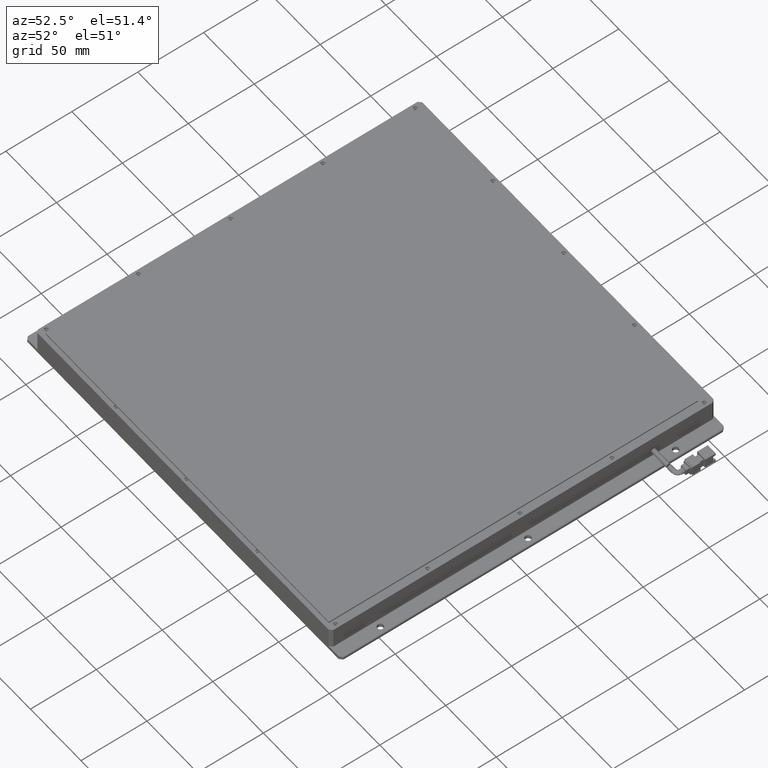
[diagram: clean part render]
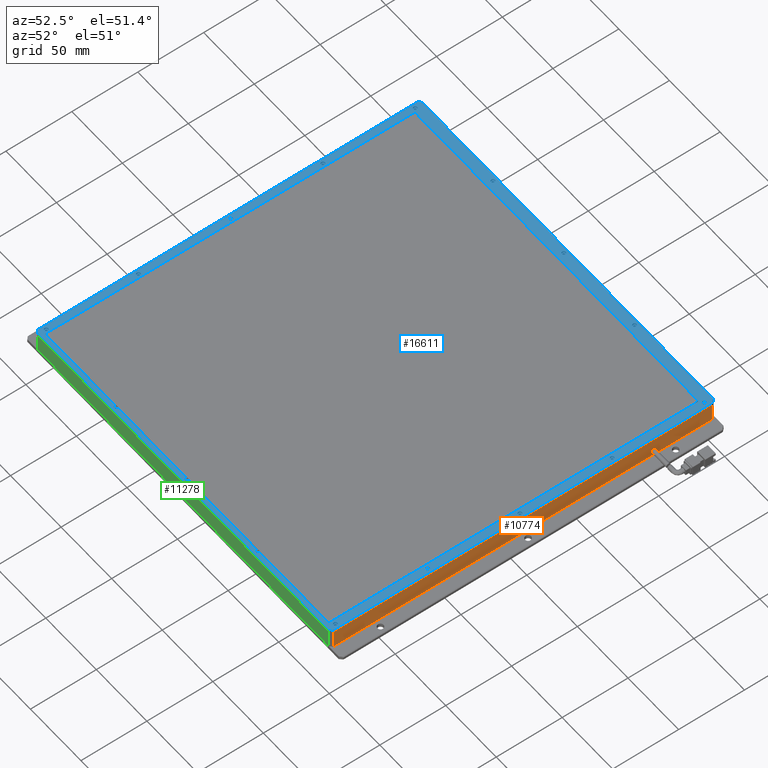
[diagram: same view with three faces highlighted in distinct colors, each labeled with its STEP entity id]
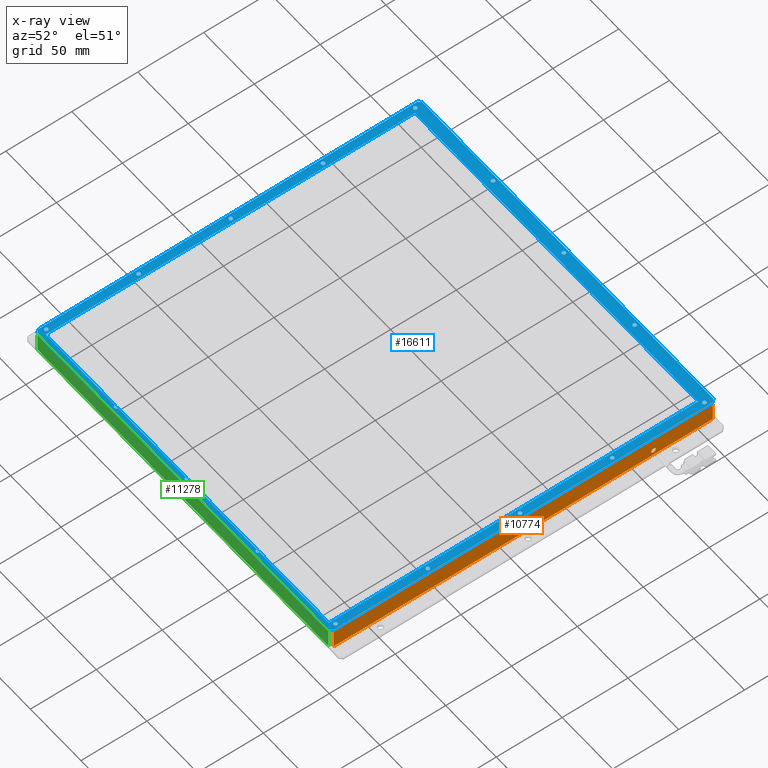
[diagram: x-ray of the same camera — body ghosted, the three highlighted faces saturated]
A machine part, auxiliary view with three faces highlighted in distinct colors.
The next image is the same camera in x-ray (body ghosted, the three faces saturated) — at least one of them is partly hidden behind the body in this view.
Their STEP definitions:

[orange] entity #10774 — the highlighted planar face has unit normal (-1, 0, 0).
#458 = CARTESIAN_POINT ( 'NONE',  ( 178.9193228736581300, 157.2698045692266600, 6.999999999971805700 ) ) ;
#603 = EDGE_CURVE ( 'NONE', #19371, #827, #5428, .T. ) ;
#827 = VERTEX_POINT ( 'NONE', #8607 ) ;
#866 = CARTESIAN_POINT ( 'NONE',  ( 178.9193228736581300, 157.2698045692267200, -7.000000000028197000 ) ) ;
#1228 = CARTESIAN_POINT ( 'NONE',  ( 178.9193228736581300, 157.2698045692266600, 6.999999999971805700 ) ) ;
#1748 = LINE ( 'NONE', #11490, #12167 ) ;
#2103 = EDGE_LOOP ( 'NONE', ( #14586, #13769, #7052, #14023 ) ) ;
#2141 = CARTESIAN_POINT ( 'NONE',  ( 178.9193228736581300, 112.2698045692266400, -3.000000000028194300 ) ) ;
#2209 = FACE_BOUND ( 'NONE', #21360, .T. ) ;
#3963 = DIRECTION ( 'NONE',  ( -0.0000000000000000000, -1.000000000000000000, 0.0000000000000000000 ) ) ;
#4150 = CARTESIAN_POINT ( 'NONE',  ( 178.9193228736581900, -132.7301954307733600, 6.999999999971805700 ) ) ;
#4620 = EDGE_CURVE ( 'NONE', #9278, #5001, #5615, .T. ) ;
#5001 = VERTEX_POINT ( 'NONE', #5951 ) ;
#5155 = CARTESIAN_POINT ( 'NONE',  ( 178.9193228736581300, 112.2698045692266400, -3.000000000028194300 ) ) ;
#5159 = ORIENTED_EDGE ( 'NONE', *, *, #21062, .F. ) ;
#5226 = VERTEX_POINT ( 'NONE', #19748 ) ;
#5260 = ORIENTED_EDGE ( 'NONE', *, *, #603, .F. ) ;
#5428 = CIRCLE ( 'NONE', #10897, 1.750000000000001600 ) ;
#5615 = LINE ( 'NONE', #9437, #8799 ) ;
#5755 = DIRECTION ( 'NONE',  ( -0.0000000000000000000, 1.000000000000000000, 0.0000000000000000000 ) ) ;
#5951 = CARTESIAN_POINT ( 'NONE',  ( 178.9193228736581900, -130.7301954307732200, -7.000000000028196100 ) ) ;
#6091 = CARTESIAN_POINT ( 'NONE',  ( 178.9193228736581300, 159.2698045692266900, 6.999999999971805700 ) ) ;
#6350 = AXIS2_PLACEMENT_3D ( 'NONE', #6091, #19034, #11629 ) ;
#7052 = ORIENTED_EDGE ( 'NONE', *, *, #17153, .T. ) ;
#7127 = AXIS2_PLACEMENT_3D ( 'NONE', #2141, #23889, #13033 ) ;
#7828 = DIRECTION ( 'NONE',  ( -0.0000000000000000000, -0.0000000000000000000, -1.000000000000000000 ) ) ;
#8607 = CARTESIAN_POINT ( 'NONE',  ( 178.9193228736581300, 112.2698045692266400, -1.250000000028193000 ) ) ;
#8799 = VECTOR ( 'NONE', #3963, 1000.000000000000000 ) ;
#9278 = VERTEX_POINT ( 'NONE', #866 ) ;
#9437 = CARTESIAN_POINT ( 'NONE',  ( 178.9193228736581300, 159.2698045692266900, -7.000000000028194300 ) ) ;
#9910 = EDGE_CURVE ( 'NONE', #9278, #21221, #22787, .T. ) ;
#10774 = ADVANCED_FACE ( 'NONE', ( #21245, #2209 ), #17342, .F. ) ;
#10897 = AXIS2_PLACEMENT_3D ( 'NONE', #5155, #16015, #12310 ) ;
#11490 = CARTESIAN_POINT ( 'NONE',  ( 178.9193228736582500, -130.7301954307731900, 6.999999999971805700 ) ) ;
#11629 = DIRECTION ( 'NONE',  ( 0.0000000000000000000, 0.0000000000000000000, 1.000000000000000000 ) ) ;
#11792 = EDGE_CURVE ( 'NONE', #5226, #21221, #23300, .T. ) ;
#12167 = VECTOR ( 'NONE', #7828, 1000.000000000000000 ) ;
#12310 = DIRECTION ( 'NONE',  ( 0.0000000000000000000, 0.0000000000000000000, 1.000000000000000000 ) ) ;
#13033 = DIRECTION ( 'NONE',  ( 0.0000000000000000000, 0.0000000000000000000, 1.000000000000000000 ) ) ;
#13769 = ORIENTED_EDGE ( 'NONE', *, *, #11792, .F. ) ;
#14023 = ORIENTED_EDGE ( 'NONE', *, *, #4620, .F. ) ;
#14459 = VECTOR ( 'NONE', #15913, 1000.000000000000000 ) ;
#14586 = ORIENTED_EDGE ( 'NONE', *, *, #9910, .T. ) ;
#15083 = CIRCLE ( 'NONE', #7127, 1.750000000000001600 ) ;
#15480 = CARTESIAN_POINT ( 'NONE',  ( 178.9193228736581300, 112.2698045692266400, -4.750000000028196100 ) ) ;
#15913 = DIRECTION ( 'NONE',  ( 0.0000000000000000000, 0.0000000000000000000, 1.000000000000000000 ) ) ;
#16015 = DIRECTION ( 'NONE',  ( 1.000000000000000000, 0.0000000000000000000, 0.0000000000000000000 ) ) ;
#17153 = EDGE_CURVE ( 'NONE', #5226, #5001, #1748, .T. ) ;
#17342 = PLANE ( 'NONE',  #6350 ) ;
#19034 = DIRECTION ( 'NONE',  ( -1.000000000000000000, 0.0000000000000000000, 0.0000000000000000000 ) ) ;
#19371 = VERTEX_POINT ( 'NONE', #15480 ) ;
#19748 = CARTESIAN_POINT ( 'NONE',  ( 178.9193228736581900, -130.7301954307732200, 6.999999999971805700 ) ) ;
#21062 = EDGE_CURVE ( 'NONE', #827, #19371, #15083, .T. ) ;
#21221 = VERTEX_POINT ( 'NONE', #458 ) ;
#21245 = FACE_OUTER_BOUND ( 'NONE', #2103, .T. ) ;
#21360 = EDGE_LOOP ( 'NONE', ( #5159, #5260 ) ) ;
#22726 = VECTOR ( 'NONE', #5755, 1000.000000000000000 ) ;
#22787 = LINE ( 'NONE', #1228, #14459 ) ;
#23300 = LINE ( 'NONE', #4150, #22726 ) ;
#23889 = DIRECTION ( 'NONE',  ( 1.000000000000000000, 0.0000000000000000000, 0.0000000000000000000 ) ) ;

[blue] entity #16611 — the highlighted planar face has unit normal (0, 0, 1).
#41 = EDGE_CURVE ( 'NONE', #20316, #2565, #19989, .T. ) ;
#45 = VERTEX_POINT ( 'NONE', #23676 ) ;
#58 = VECTOR ( 'NONE', #8919, 1000.000000000000000 ) ;
#108 = VECTOR ( 'NONE', #19925, 1000.000000000000000 ) ;
#136 = CARTESIAN_POINT ( 'NONE',  ( 32.91932287365807500, -129.7301954307734500, 8.999999999971805700 ) ) ;
#149 = CARTESIAN_POINT ( 'NONE',  ( -38.48067712634186000, 156.2698045692266100, 8.999999999971805700 ) ) ;
#150 = EDGE_CURVE ( 'NONE', #23610, #10617, #19120, .T. ) ;
#168 = CARTESIAN_POINT ( 'NONE',  ( -111.4806771263418600, -56.73019543077345600, 8.999999999971805700 ) ) ;
#188 = CARTESIAN_POINT ( 'NONE',  ( 31.51932287365814700, 156.2698045692266100, 8.999999999971805700 ) ) ;
#193 = DIRECTION ( 'NONE',  ( 0.0000000000000000000, 1.000000000000000000, 0.0000000000000000000 ) ) ;
#218 = DIRECTION ( 'NONE',  ( 1.000000000000000000, 0.0000000000000000000, 0.0000000000000000000 ) ) ;
#240 = DIRECTION ( 'NONE',  ( -0.0000000000000000000, -0.0000000000000000000, -1.000000000000000000 ) ) ;
#330 = AXIS2_PLACEMENT_3D ( 'NONE', #22643, #13337, #2338 ) ;
#333 = EDGE_CURVE ( 'NONE', #1569, #11695, #5176, .T. ) ;
#356 = DIRECTION ( 'NONE',  ( -0.0000000000000000000, -0.0000000000000000000, -1.000000000000000000 ) ) ;
#445 = VERTEX_POINT ( 'NONE', #10423 ) ;
#480 = ORIENTED_EDGE ( 'NONE', *, *, #13216, .T. ) ;
#505 = LINE ( 'NONE', #12474, #22982 ) ;
#577 = CARTESIAN_POINT ( 'NONE',  ( 34.31932287365811600, 156.2698045692266100, 8.999999999971805700 ) ) ;
#691 = EDGE_CURVE ( 'NONE', #1892, #4509, #22768, .T. ) ;
#755 = VERTEX_POINT ( 'NONE', #15887 ) ;
#774 = ORIENTED_EDGE ( 'NONE', *, *, #15206, .T. ) ;
#961 = AXIS2_PLACEMENT_3D ( 'NONE', #2984, #8065, #22823 ) ;
#1058 = PLANE ( 'NONE',  #2198 ) ;
#1064 = VECTOR ( 'NONE', #20783, 1000.000000000000000 ) ;
#1273 = VECTOR ( 'NONE', #3932, 1000.000000000000000 ) ;
#1386 = CARTESIAN_POINT ( 'NONE',  ( -107.0806771263418400, 150.5687873210993100, 8.999999999971805700 ) ) ;
#1404 = VECTOR ( 'NONE', #193, 1000.000000000000000 ) ;
#1569 = VERTEX_POINT ( 'NONE', #2923 ) ;
#1603 = CARTESIAN_POINT ( 'NONE',  ( 177.3193228736581400, -56.73019543077345600, 8.999999999971805700 ) ) ;
#1661 = CIRCLE ( 'NONE', #15028, 1.399999999999984600 ) ;
#1765 = ORIENTED_EDGE ( 'NONE', *, *, #15732, .T. ) ;
#1830 = LINE ( 'NONE', #6997, #108 ) ;
#1892 = VERTEX_POINT ( 'NONE', #11324 ) ;
#1924 = DIRECTION ( 'NONE',  ( -0.0000000000000000000, -0.0000000000000000000, -1.000000000000000000 ) ) ;
#1935 = DIRECTION ( 'NONE',  ( 1.000000000000000000, 0.0000000000000000000, 0.0000000000000000000 ) ) ;
#1988 = DIRECTION ( 'NONE',  ( 1.000000000000000000, 0.0000000000000000000, 0.0000000000000000000 ) ) ;
#2037 = EDGE_LOOP ( 'NONE', ( #23374, #2128 ) ) ;
#2068 = DIRECTION ( 'NONE',  ( 1.000000000000000000, 0.0000000000000000000, 0.0000000000000000000 ) ) ;
#2123 = CARTESIAN_POINT ( 'NONE',  ( 178.9193228736581300, -130.7301954307733600, 8.999999999971805700 ) ) ;
#2125 = CIRCLE ( 'NONE', #10610, 1.399999999999984600 ) ;
#2128 = ORIENTED_EDGE ( 'NONE', *, *, #4251, .T. ) ;
#2172 = EDGE_LOOP ( 'NONE', ( #23539, #13521 ) ) ;
#2174 = CARTESIAN_POINT ( 'NONE',  ( 101.5193228736581100, -129.7301954307734500, 8.999999999971805700 ) ) ;
#2198 = AXIS2_PLACEMENT_3D ( 'NONE', #6588, #20828, #18977 ) ;
#2261 = ORIENTED_EDGE ( 'NONE', *, *, #13351, .T. ) ;
#2267 = VERTEX_POINT ( 'NONE', #17226 ) ;
#2275 = EDGE_CURVE ( 'NONE', #22807, #21319, #16870, .T. ) ;
#2280 = CIRCLE ( 'NONE', #9572, 1.399999999999984600 ) ;
#2316 = DIRECTION ( 'NONE',  ( -0.0000000000000000000, -0.0000000000000000000, -1.000000000000000000 ) ) ;
#2325 = LINE ( 'NONE', #2123, #9520 ) ;
#2338 = DIRECTION ( 'NONE',  ( 1.000000000000000000, 0.0000000000000000000, 0.0000000000000000000 ) ) ;
#2411 = CARTESIAN_POINT ( 'NONE',  ( 175.9193228736581600, 153.2698045692265800, 8.999999999971805700 ) ) ;
#2443 = VERTEX_POINT ( 'NONE', #6984 ) ;
#2480 = EDGE_CURVE ( 'NONE', #5508, #22738, #2125, .T. ) ;
#2521 = CIRCLE ( 'NONE', #6328, 1.399999999999984600 ) ;
#2565 = VERTEX_POINT ( 'NONE', #15082 ) ;
#2615 = FACE_BOUND ( 'NONE', #8113, .T. ) ;
#2667 = DIRECTION ( 'NONE',  ( -0.0000000000000000000, -0.0000000000000000000, -1.000000000000000000 ) ) ;
#2725 = AXIS2_PLACEMENT_3D ( 'NONE', #23677, #10522, #6804 ) ;
#2748 = ORIENTED_EDGE ( 'NONE', *, *, #6026, .T. ) ;
#2776 = AXIS2_PLACEMENT_3D ( 'NONE', #7051, #7134, #16267 ) ;
#2812 = DIRECTION ( 'NONE',  ( 1.000000000000000000, 0.0000000000000000000, 0.0000000000000000000 ) ) ;
#2849 = AXIS2_PLACEMENT_3D ( 'NONE', #6208, #2667, #13729 ) ;
#2876 = ORIENTED_EDGE ( 'NONE', *, *, #13966, .F. ) ;
#2882 = FACE_BOUND ( 'NONE', #7272, .T. ) ;
#2923 = CARTESIAN_POINT ( 'NONE',  ( -108.6806771263418900, 13.26980456922655100, 8.999999999971805700 ) ) ;
#2984 = CARTESIAN_POINT ( 'NONE',  ( 175.9193228736581600, 13.26980456922655100, 8.999999999971805700 ) ) ;
#3008 = EDGE_LOOP ( 'NONE', ( #19643, #18709, #18446, #7301, #4678, #20437, #22089, #12906 ) ) ;
#3013 = CIRCLE ( 'NONE', #7028, 1.399999999999984600 ) ;
#3078 = CARTESIAN_POINT ( 'NONE',  ( 177.3193228736581400, 83.26980456922656500, 8.999999999971805700 ) ) ;
#3149 = CARTESIAN_POINT ( 'NONE',  ( -108.6806771263418900, -56.73019543077345600, 8.999999999971805700 ) ) ;
#3181 = DIRECTION ( 'NONE',  ( -0.0000000000000000000, -0.0000000000000000000, -1.000000000000000000 ) ) ;
#3391 = ORIENTED_EDGE ( 'NONE', *, *, #13288, .T. ) ;
#3454 = CARTESIAN_POINT ( 'NONE',  ( 177.3193228736581100, -126.7301954307734600, 8.999999999971805700 ) ) ;
#3468 = FACE_BOUND ( 'NONE', #23778, .T. ) ;
#3522 = CIRCLE ( 'NONE', #21890, 1.399999999999984600 ) ;
#3528 = CARTESIAN_POINT ( 'NONE',  ( -107.0806771263418400, -129.4312126789007200, 8.999999999971805700 ) ) ;
#3542 = DIRECTION ( 'NONE',  ( -0.7071067811865474600, 0.7071067811865474600, -0.0000000000000000000 ) ) ;
#3640 = VERTEX_POINT ( 'NONE', #9193 ) ;
#3773 = EDGE_CURVE ( 'NONE', #17961, #10265, #9793, .T. ) ;
#3816 = VERTEX_POINT ( 'NONE', #577 ) ;
#3932 = DIRECTION ( 'NONE',  ( -0.0000000000000000000, -1.000000000000000000, -0.0000000000000000000 ) ) ;
#4092 = ORIENTED_EDGE ( 'NONE', *, *, #2480, .T. ) ;
#4123 = CIRCLE ( 'NONE', #7741, 1.399999999999984600 ) ;
#4191 = EDGE_CURVE ( 'NONE', #5548, #21917, #2521, .T. ) ;
#4241 = ORIENTED_EDGE ( 'NONE', *, *, #23366, .T. ) ;
#4251 = EDGE_CURVE ( 'NONE', #3640, #8877, #1661, .T. ) ;
#4315 = ORIENTED_EDGE ( 'NONE', *, *, #5514, .T. ) ;
#4357 = EDGE_CURVE ( 'NONE', #23759, #15932, #22110, .T. ) ;
#4367 = VECTOR ( 'NONE', #14035, 1000.000000000000100 ) ;
#4404 = CARTESIAN_POINT ( 'NONE',  ( 177.3193228736581400, 153.2698045692265800, 8.999999999971805700 ) ) ;
#4509 = VERTEX_POINT ( 'NONE', #5055 ) ;
#4676 = EDGE_LOOP ( 'NONE', ( #2748, #5101 ) ) ;
#4678 = ORIENTED_EDGE ( 'NONE', *, *, #7163, .T. ) ;
#4696 = CARTESIAN_POINT ( 'NONE',  ( -113.0806771263418400, 159.2698045692265800, 8.999999999971805700 ) ) ;
#4712 = DIRECTION ( 'NONE',  ( -0.0000000000000000000, -0.0000000000000000000, -1.000000000000000000 ) ) ;
#4747 = VERTEX_POINT ( 'NONE', #19073 ) ;
#4754 = CIRCLE ( 'NONE', #15399, 1.399999999999984600 ) ;
#4770 = DIRECTION ( 'NONE',  ( -0.0000000000000000000, -1.000000000000000000, -0.0000000000000000000 ) ) ;
#4849 = DIRECTION ( 'NONE',  ( -0.0000000000000000000, -0.0000000000000000000, -1.000000000000000000 ) ) ;
#4911 = DIRECTION ( 'NONE',  ( 1.000000000000000000, -0.0000000000000000000, -0.0000000000000000000 ) ) ;
#4933 = EDGE_CURVE ( 'NONE', #8877, #3640, #16869, .T. ) ;
#4934 = CARTESIAN_POINT ( 'NONE',  ( 176.9193228736581000, 159.2698045692266100, 8.999999999971805700 ) ) ;
#5055 = CARTESIAN_POINT ( 'NONE',  ( 101.5193228736581500, 156.2698045692266100, 8.999999999971805700 ) ) ;
#5101 = ORIENTED_EDGE ( 'NONE', *, *, #21522, .T. ) ;
#5164 = FACE_BOUND ( 'NONE', #17147, .T. ) ;
#5176 = CIRCLE ( 'NONE', #6677, 1.399999999999984600 ) ;
#5192 = EDGE_CURVE ( 'NONE', #2565, #45, #15951, .T. ) ;
#5194 = DIRECTION ( 'NONE',  ( -0.0000000000000000000, -0.0000000000000000000, -1.000000000000000000 ) ) ;
#5242 = CARTESIAN_POINT ( 'NONE',  ( 178.9193228736581000, -130.7301954307734200, 8.999999999971805700 ) ) ;
#5248 = ORIENTED_EDGE ( 'NONE', *, *, #9837, .T. ) ;
#5421 = AXIS2_PLACEMENT_3D ( 'NONE', #2411, #13564, #19189 ) ;
#5475 = CARTESIAN_POINT ( 'NONE',  ( 172.9193228736581900, -129.4312126789007200, 8.999999999971805700 ) ) ;
#5508 = VERTEX_POINT ( 'NONE', #149 ) ;
#5514 = EDGE_CURVE ( 'NONE', #22738, #5508, #10417, .T. ) ;
#5528 = ORIENTED_EDGE ( 'NONE', *, *, #12122, .T. ) ;
#5548 = VERTEX_POINT ( 'NONE', #7476 ) ;
#5589 = EDGE_CURVE ( 'NONE', #11189, #9116, #15391, .T. ) ;
#5596 = DIRECTION ( 'NONE',  ( 1.000000000000000000, 0.0000000000000000000, 0.0000000000000000000 ) ) ;
#5604 = CARTESIAN_POINT ( 'NONE',  ( -38.44837932860767900, -129.4312126789007200, 8.999999999971805700 ) ) ;
#5750 = CARTESIAN_POINT ( 'NONE',  ( -110.0806771263418700, 13.26980456922655100, 8.999999999971805700 ) ) ;
#5756 = EDGE_CURVE ( 'NONE', #4509, #1892, #7573, .T. ) ;
#5760 = CIRCLE ( 'NONE', #961, 1.399999999999984600 ) ;
#5806 = AXIS2_PLACEMENT_3D ( 'NONE', #22128, #22049, #2068 ) ;
#5808 = DIRECTION ( 'NONE',  ( -0.0000000000000000000, -0.0000000000000000000, -1.000000000000000000 ) ) ;
#6026 = EDGE_CURVE ( 'NONE', #755, #7775, #8655, .T. ) ;
#6163 = CIRCLE ( 'NONE', #5421, 1.399999999999984600 ) ;
#6172 = CARTESIAN_POINT ( 'NONE',  ( 32.91932287365813200, 156.2698045692266100, 8.999999999971805700 ) ) ;
#6208 = CARTESIAN_POINT ( 'NONE',  ( 175.9193228736581300, -56.73019543077345600, 8.999999999971805700 ) ) ;
#6253 = VERTEX_POINT ( 'NONE', #13860 ) ;
#6287 = LINE ( 'NONE', #5475, #1404 ) ;
#6325 = CARTESIAN_POINT ( 'NONE',  ( -38.48067712634191700, -129.7301954307734500, 8.999999999971805700 ) ) ;
#6328 = AXIS2_PLACEMENT_3D ( 'NONE', #136, #20388, #9551 ) ;
#6344 = FACE_BOUND ( 'NONE', #10014, .T. ) ;
#6356 = ORIENTED_EDGE ( 'NONE', *, *, #11414, .T. ) ;
#6365 = EDGE_LOOP ( 'NONE', ( #4241, #19492 ) ) ;
#6369 = AXIS2_PLACEMENT_3D ( 'NONE', #10461, #10217, #2812 ) ;
#6445 = EDGE_CURVE ( 'NONE', #19022, #2267, #505, .T. ) ;
#6588 = CARTESIAN_POINT ( 'NONE',  ( -113.0806771263418400, -132.7301954307733900, 8.999999999971805700 ) ) ;
#6608 = FACE_BOUND ( 'NONE', #2037, .T. ) ;
#6677 = AXIS2_PLACEMENT_3D ( 'NONE', #5750, #2316, #1988 ) ;
#6804 = DIRECTION ( 'NONE',  ( 1.000000000000000000, 0.0000000000000000000, 0.0000000000000000000 ) ) ;
#6912 = FACE_BOUND ( 'NONE', #7935, .T. ) ;
#6958 = VERTEX_POINT ( 'NONE', #19939 ) ;
#6966 = CARTESIAN_POINT ( 'NONE',  ( -111.4806771263418600, 13.26980456922655100, 8.999999999971805700 ) ) ;
#6984 = CARTESIAN_POINT ( 'NONE',  ( 177.3193228736581400, 13.26980456922655100, 8.999999999971805700 ) ) ;
#6997 = CARTESIAN_POINT ( 'NONE',  ( -107.0806771263418400, -129.4312126789007200, 8.999999999971805700 ) ) ;
#7028 = AXIS2_PLACEMENT_3D ( 'NONE', #15596, #17460, #19302 ) ;
#7051 = CARTESIAN_POINT ( 'NONE',  ( -110.0806771263418700, 13.26980456922655100, 8.999999999971805700 ) ) ;
#7134 = DIRECTION ( 'NONE',  ( -0.0000000000000000000, -0.0000000000000000000, -1.000000000000000000 ) ) ;
#7162 = ORIENTED_EDGE ( 'NONE', *, *, #11549, .F. ) ;
#7163 = EDGE_CURVE ( 'NONE', #45, #13742, #15695, .T. ) ;
#7254 = EDGE_CURVE ( 'NONE', #6253, #22712, #16847, .T. ) ;
#7272 = EDGE_LOOP ( 'NONE', ( #6356, #21199 ) ) ;
#7301 = ORIENTED_EDGE ( 'NONE', *, *, #5192, .T. ) ;
#7364 = AXIS2_PLACEMENT_3D ( 'NONE', #7776, #19084, #20694 ) ;
#7414 = CARTESIAN_POINT ( 'NONE',  ( 176.9193228736581600, 159.2698045692265800, 8.999999999971805700 ) ) ;
#7430 = CARTESIAN_POINT ( 'NONE',  ( -37.08067712634193200, -129.7301954307734500, 8.999999999971805700 ) ) ;
#7443 = CIRCLE ( 'NONE', #18959, 1.399999999999984600 ) ;
#7476 = CARTESIAN_POINT ( 'NONE',  ( 34.28702507592382900, -129.4312126789007200, 8.999999999971805700 ) ) ;
#7573 = CIRCLE ( 'NONE', #16329, 1.399999999999984600 ) ;
#7678 = AXIS2_PLACEMENT_3D ( 'NONE', #14365, #16197, #21756 ) ;
#7699 = VERTEX_POINT ( 'NONE', #18306 ) ;
#7741 = AXIS2_PLACEMENT_3D ( 'NONE', #14277, #3181, #10350 ) ;
#7775 = VERTEX_POINT ( 'NONE', #20483 ) ;
#7776 = CARTESIAN_POINT ( 'NONE',  ( -110.0806771263418700, -56.73019543077345600, 8.999999999971805700 ) ) ;
#7935 = EDGE_LOOP ( 'NONE', ( #17231, #20626, #5248, #21608, #23143, #7162, #19760, #2876, #16534, #480, #13975, #2261, #21171, #15911, #5528, #774 ) ) ;
#8019 = AXIS2_PLACEMENT_3D ( 'NONE', #19923, #21775, #21920 ) ;
#8065 = DIRECTION ( 'NONE',  ( -0.0000000000000000000, -0.0000000000000000000, -1.000000000000000000 ) ) ;
#8076 = DIRECTION ( 'NONE',  ( 1.000000000000000000, 0.0000000000000000000, 0.0000000000000000000 ) ) ;
#8113 = EDGE_LOOP ( 'NONE', ( #4315, #4092 ) ) ;
#8116 = DIRECTION ( 'NONE',  ( -0.0000000000000000000, -0.0000000000000000000, -1.000000000000000000 ) ) ;
#8249 = AXIS2_PLACEMENT_3D ( 'NONE', #6172, #19112, #20949 ) ;
#8254 = AXIS2_PLACEMENT_3D ( 'NONE', #10063, #15507, #8076 ) ;
#8376 = ORIENTED_EDGE ( 'NONE', *, *, #22280, .T. ) ;
#8378 = CIRCLE ( 'NONE', #23369, 1.399999999999984600 ) ;
#8412 = CARTESIAN_POINT ( 'NONE',  ( -107.0806771263418400, -129.4312126789007200, 8.999999999971805700 ) ) ;
#8655 = CIRCLE ( 'NONE', #5806, 1.399999999999984600 ) ;
#8684 = CARTESIAN_POINT ( 'NONE',  ( 34.31932287365805900, -129.7301954307734500, 8.999999999971805700 ) ) ;
#8700 = CARTESIAN_POINT ( 'NONE',  ( -35.68067712634189100, 156.2698045692266100, 8.999999999971805700 ) ) ;
#8836 = ORIENTED_EDGE ( 'NONE', *, *, #691, .T. ) ;
#8877 = VERTEX_POINT ( 'NONE', #3454 ) ;
#8889 = AXIS2_PLACEMENT_3D ( 'NONE', #21262, #8116, #15406 ) ;
#8893 = ORIENTED_EDGE ( 'NONE', *, *, #10282, .T. ) ;
#8919 = DIRECTION ( 'NONE',  ( 1.000000000000000000, 0.0000000000000000000, 0.0000000000000000000 ) ) ;
#8976 = DIRECTION ( 'NONE',  ( 1.000000000000000000, 0.0000000000000000000, 0.0000000000000000000 ) ) ;
#8998 = AXIS2_PLACEMENT_3D ( 'NONE', #11408, #356, #15117 ) ;
#9028 = ORIENTED_EDGE ( 'NONE', *, *, #17040, .T. ) ;
#9116 = VERTEX_POINT ( 'NONE', #2174 ) ;
#9193 = CARTESIAN_POINT ( 'NONE',  ( 174.5193228736581500, -126.7301954307734600, 8.999999999971805700 ) ) ;
#9195 = VECTOR ( 'NONE', #23000, 1000.000000000000000 ) ;
#9199 = DIRECTION ( 'NONE',  ( 1.000000000000000000, 0.0000000000000000000, 0.0000000000000000000 ) ) ;
#9438 = ORIENTED_EDGE ( 'NONE', *, *, #17756, .T. ) ;
#9464 = CARTESIAN_POINT ( 'NONE',  ( 175.9193228736581300, -126.7301954307734600, 8.999999999971805700 ) ) ;
#9520 = VECTOR ( 'NONE', #14871, 1000.000000000000000 ) ;
#9551 = DIRECTION ( 'NONE',  ( 1.000000000000000000, 0.0000000000000000000, 0.0000000000000000000 ) ) ;
#9572 = AXIS2_PLACEMENT_3D ( 'NONE', #13807, #4712, #11959 ) ;
#9650 = DIRECTION ( 'NONE',  ( 1.000000000000000000, 0.0000000000000000000, 0.0000000000000000000 ) ) ;
#9709 = DIRECTION ( 'NONE',  ( 1.000000000000000000, 0.0000000000000000000, 0.0000000000000000000 ) ) ;
#9717 = CARTESIAN_POINT ( 'NONE',  ( -111.4806771263418600, -126.7301954307734600, 8.999999999971805700 ) ) ;
#9771 = VECTOR ( 'NONE', #12830, 1000.000000000000000 ) ;
#9793 = CIRCLE ( 'NONE', #330, 1.399999999999984600 ) ;
#9837 = EDGE_CURVE ( 'NONE', #22712, #15491, #19640, .T. ) ;
#9929 = CARTESIAN_POINT ( 'NONE',  ( 178.9193228736581000, 157.2698045692266400, 8.999999999971805700 ) ) ;
#9955 = VERTEX_POINT ( 'NONE', #12858 ) ;
#10014 = EDGE_LOOP ( 'NONE', ( #14996, #1765 ) ) ;
#10063 = CARTESIAN_POINT ( 'NONE',  ( 175.9193228736581300, -56.73019543077345600, 8.999999999971805700 ) ) ;
#10066 = DIRECTION ( 'NONE',  ( -0.0000000000000000000, -0.0000000000000000000, -1.000000000000000000 ) ) ;
#10083 = FACE_BOUND ( 'NONE', #4676, .T. ) ;
#10121 = CIRCLE ( 'NONE', #7678, 1.399999999999984600 ) ;
#10217 = DIRECTION ( 'NONE',  ( -0.0000000000000000000, -0.0000000000000000000, -1.000000000000000000 ) ) ;
#10265 = VERTEX_POINT ( 'NONE', #4404 ) ;
#10282 = EDGE_CURVE ( 'NONE', #10994, #10768, #2280, .T. ) ;
#10283 = CIRCLE ( 'NONE', #15908, 1.399999999999984600 ) ;
#10350 = DIRECTION ( 'NONE',  ( 1.000000000000000000, 0.0000000000000000000, 0.0000000000000000000 ) ) ;
#10417 = CIRCLE ( 'NONE', #16145, 1.399999999999984600 ) ;
#10423 = CARTESIAN_POINT ( 'NONE',  ( -108.6806771263418900, 153.2698045692265800, 8.999999999971805700 ) ) ;
#10444 = CARTESIAN_POINT ( 'NONE',  ( -107.0806771263418400, -129.4312126789007200, 8.999999999971805700 ) ) ;
#10461 = CARTESIAN_POINT ( 'NONE',  ( -110.0806771263418700, 153.2698045692265800, 8.999999999971805700 ) ) ;
#10522 = DIRECTION ( 'NONE',  ( -0.0000000000000000000, -0.0000000000000000000, -1.000000000000000000 ) ) ;
#10601 = VERTEX_POINT ( 'NONE', #1603 ) ;
#10610 = AXIS2_PLACEMENT_3D ( 'NONE', #21769, #5194, #21916 ) ;
#10617 = VERTEX_POINT ( 'NONE', #5604 ) ;
#10768 = VERTEX_POINT ( 'NONE', #9717 ) ;
#10887 = VECTOR ( 'NONE', #9709, 1000.000000000000000 ) ;
#10955 = FACE_BOUND ( 'NONE', #22091, .T. ) ;
#10994 = VERTEX_POINT ( 'NONE', #15630 ) ;
#11189 = VERTEX_POINT ( 'NONE', #16751 ) ;
#11226 = CARTESIAN_POINT ( 'NONE',  ( 31.51932287365809400, -129.7301954307734500, 8.999999999971805700 ) ) ;
#11285 = FACE_BOUND ( 'NONE', #6365, .T. ) ;
#11301 = CARTESIAN_POINT ( 'NONE',  ( -107.0806771263418400, 150.5687873210993100, 8.999999999971805700 ) ) ;
#11324 = CARTESIAN_POINT ( 'NONE',  ( 104.3193228736581200, 156.2698045692266100, 8.999999999971805700 ) ) ;
#11360 = DIRECTION ( 'NONE',  ( 1.000000000000000000, 0.0000000000000000000, 0.0000000000000000000 ) ) ;
#11408 = CARTESIAN_POINT ( 'NONE',  ( 175.9193228736581600, 83.26980456922656500, 8.999999999971805700 ) ) ;
#11414 = EDGE_CURVE ( 'NONE', #10265, #17961, #6163, .T. ) ;
#11481 = VERTEX_POINT ( 'NONE', #12011 ) ;
#11494 = LINE ( 'NONE', #1386, #20987 ) ;
#11501 = EDGE_LOOP ( 'NONE', ( #21108, #17728 ) ) ;
#11549 = EDGE_CURVE ( 'NONE', #22925, #23610, #21628, .T. ) ;
#11590 = AXIS2_PLACEMENT_3D ( 'NONE', #13739, #21076, #19453 ) ;
#11646 = CARTESIAN_POINT ( 'NONE',  ( -111.0806771263418700, -132.7301954307733900, 8.999999999971805700 ) ) ;
#11695 = VERTEX_POINT ( 'NONE', #6966 ) ;
#11705 = CARTESIAN_POINT ( 'NONE',  ( 104.2870250759238400, -129.4312126789007200, 8.999999999971805700 ) ) ;
#11728 = CIRCLE ( 'NONE', #8019, 1.399999999999984600 ) ;
#11830 = EDGE_CURVE ( 'NONE', #5548, #14947, #15818, .T. ) ;
#11959 = DIRECTION ( 'NONE',  ( 1.000000000000000000, 0.0000000000000000000, 0.0000000000000000000 ) ) ;
#12011 = CARTESIAN_POINT ( 'NONE',  ( 174.5193228736581300, -56.73019543077345600, 8.999999999971805700 ) ) ;
#12122 = EDGE_CURVE ( 'NONE', #21917, #18877, #4754, .T. ) ;
#12474 = CARTESIAN_POINT ( 'NONE',  ( -113.0806771263418400, -132.7301954307733900, 8.999999999971805700 ) ) ;
#12563 = ORIENTED_EDGE ( 'NONE', *, *, #12567, .T. ) ;
#12567 = EDGE_CURVE ( 'NONE', #10768, #10994, #3013, .T. ) ;
#12830 = DIRECTION ( 'NONE',  ( 1.000000000000000000, 0.0000000000000000000, 0.0000000000000000000 ) ) ;
#12858 = CARTESIAN_POINT ( 'NONE',  ( -111.4806771263418600, 153.2698045692265800, 8.999999999971805700 ) ) ;
#12860 = DIRECTION ( 'NONE',  ( -0.0000000000000000000, -0.0000000000000000000, -1.000000000000000000 ) ) ;
#12906 = ORIENTED_EDGE ( 'NONE', *, *, #16584, .T. ) ;
#12977 = LINE ( 'NONE', #15841, #9195 ) ;
#13055 = CARTESIAN_POINT ( 'NONE',  ( -110.0806771263418700, 153.2698045692265800, 8.999999999971805700 ) ) ;
#13100 = CARTESIAN_POINT ( 'NONE',  ( -110.0806771263418700, 83.26980456922656500, 8.999999999971805700 ) ) ;
#13216 = EDGE_CURVE ( 'NONE', #23006, #11189, #14527, .T. ) ;
#13288 = EDGE_CURVE ( 'NONE', #21319, #22807, #19971, .T. ) ;
#13337 = DIRECTION ( 'NONE',  ( -0.0000000000000000000, -0.0000000000000000000, -1.000000000000000000 ) ) ;
#13351 = EDGE_CURVE ( 'NONE', #9116, #14947, #10121, .T. ) ;
#13475 = VERTEX_POINT ( 'NONE', #14605 ) ;
#13521 = ORIENTED_EDGE ( 'NONE', *, *, #22430, .T. ) ;
#13564 = DIRECTION ( 'NONE',  ( -0.0000000000000000000, -0.0000000000000000000, -1.000000000000000000 ) ) ;
#13729 = DIRECTION ( 'NONE',  ( 1.000000000000000000, 0.0000000000000000000, 0.0000000000000000000 ) ) ;
#13739 = CARTESIAN_POINT ( 'NONE',  ( -37.08067712634193200, -129.7301954307734500, 8.999999999971805700 ) ) ;
#13742 = VERTEX_POINT ( 'NONE', #17795 ) ;
#13807 = CARTESIAN_POINT ( 'NONE',  ( -110.0806771263418700, -126.7301954307734600, 8.999999999971805700 ) ) ;
#13828 = ORIENTED_EDGE ( 'NONE', *, *, #2275, .T. ) ;
#13860 = CARTESIAN_POINT ( 'NONE',  ( -35.71297492407617800, -129.4312126789007200, 8.999999999971805700 ) ) ;
#13940 = DIRECTION ( 'NONE',  ( -0.0000000000000000000, -0.0000000000000000000, -1.000000000000000000 ) ) ;
#13966 = EDGE_CURVE ( 'NONE', #6958, #4747, #6287, .T. ) ;
#13975 = ORIENTED_EDGE ( 'NONE', *, *, #5589, .T. ) ;
#14035 = DIRECTION ( 'NONE',  ( -0.7071067811865474600, -0.7071067811865474600, -0.0000000000000000000 ) ) ;
#14123 = CARTESIAN_POINT ( 'NONE',  ( -113.0806771263418400, 157.2698045692265800, 8.999999999971805700 ) ) ;
#14277 = CARTESIAN_POINT ( 'NONE',  ( 175.9193228736581600, 13.26980456922655100, 8.999999999971805700 ) ) ;
#14365 = CARTESIAN_POINT ( 'NONE',  ( 102.9193228736581000, -129.7301954307734500, 8.999999999971805700 ) ) ;
#14443 = EDGE_CURVE ( 'NONE', #13742, #19022, #12977, .T. ) ;
#14448 = CIRCLE ( 'NONE', #6369, 1.399999999999984600 ) ;
#14527 = CIRCLE ( 'NONE', #22041, 1.399999999999984600 ) ;
#14605 = CARTESIAN_POINT ( 'NONE',  ( 31.55162067139232500, -129.4312126789007200, 8.999999999971805700 ) ) ;
#14655 = VERTEX_POINT ( 'NONE', #3078 ) ;
#14722 = LINE ( 'NONE', #3528, #9771 ) ;
#14728 = CIRCLE ( 'NONE', #17116, 1.399999999999984600 ) ;
#14740 = EDGE_LOOP ( 'NONE', ( #8836, #19248 ) ) ;
#14757 = EDGE_CURVE ( 'NONE', #15491, #10617, #10283, .T. ) ;
#14870 = CARTESIAN_POINT ( 'NONE',  ( 102.9193228736581500, 156.2698045692266100, 8.999999999971805700 ) ) ;
#14871 = DIRECTION ( 'NONE',  ( 0.7071067811865425800, 0.7071067811865525700, -0.0000000000000000000 ) ) ;
#14912 = CARTESIAN_POINT ( 'NONE',  ( -37.08067712634187500, 156.2698045692266100, 8.999999999971805700 ) ) ;
#14939 = CARTESIAN_POINT ( 'NONE',  ( -113.0806771263418400, 159.2698045692265800, 8.999999999971805700 ) ) ;
#14947 = VERTEX_POINT ( 'NONE', #18981 ) ;
#14996 = ORIENTED_EDGE ( 'NONE', *, *, #333, .T. ) ;
#15000 = CARTESIAN_POINT ( 'NONE',  ( -107.0806771263418400, -129.4312126789007200, 8.999999999971805700 ) ) ;
#15028 = AXIS2_PLACEMENT_3D ( 'NONE', #9464, #22374, #11360 ) ;
#15082 = CARTESIAN_POINT ( 'NONE',  ( -111.0806771263417500, 159.2698045692265800, 8.999999999971805700 ) ) ;
#15117 = DIRECTION ( 'NONE',  ( 1.000000000000000000, 0.0000000000000000000, 0.0000000000000000000 ) ) ;
#15124 = DIRECTION ( 'NONE',  ( 1.000000000000000000, 0.0000000000000000000, 0.0000000000000000000 ) ) ;
#15206 = EDGE_CURVE ( 'NONE', #18877, #13475, #11728, .T. ) ;
#15391 = CIRCLE ( 'NONE', #8889, 1.399999999999984600 ) ;
#15399 = AXIS2_PLACEMENT_3D ( 'NONE', #20042, #21954, #8976 ) ;
#15406 = DIRECTION ( 'NONE',  ( 1.000000000000000000, 0.0000000000000000000, 0.0000000000000000000 ) ) ;
#15408 = CIRCLE ( 'NONE', #2776, 1.399999999999984600 ) ;
#15491 = VERTEX_POINT ( 'NONE', #6325 ) ;
#15507 = DIRECTION ( 'NONE',  ( -0.0000000000000000000, -0.0000000000000000000, -1.000000000000000000 ) ) ;
#15595 = CARTESIAN_POINT ( 'NONE',  ( 175.9193228736581300, -126.7301954307734600, 8.999999999971805700 ) ) ;
#15596 = CARTESIAN_POINT ( 'NONE',  ( -110.0806771263418700, -126.7301954307734600, 8.999999999971805700 ) ) ;
#15621 = EDGE_LOOP ( 'NONE', ( #9028, #16454 ) ) ;
#15630 = CARTESIAN_POINT ( 'NONE',  ( -108.6806771263418900, -126.7301954307734600, 8.999999999971805700 ) ) ;
#15649 = EDGE_CURVE ( 'NONE', #2443, #21103, #4123, .T. ) ;
#15695 = LINE ( 'NONE', #14939, #1273 ) ;
#15732 = EDGE_CURVE ( 'NONE', #11695, #1569, #15408, .T. ) ;
#15818 = LINE ( 'NONE', #15000, #10887 ) ;
#15841 = CARTESIAN_POINT ( 'NONE',  ( -111.0806771263418700, -132.7301954307733900, 8.999999999971805700 ) ) ;
#15887 = CARTESIAN_POINT ( 'NONE',  ( -108.6806771263418900, 83.26980456922656500, 8.999999999971805700 ) ) ;
#15908 = AXIS2_PLACEMENT_3D ( 'NONE', #7430, #12860, #16730 ) ;
#15911 = ORIENTED_EDGE ( 'NONE', *, *, #4191, .T. ) ;
#15932 = VERTEX_POINT ( 'NONE', #9929 ) ;
#15951 = LINE ( 'NONE', #14123, #4367 ) ;
#15955 = CARTESIAN_POINT ( 'NONE',  ( 102.9193228736581000, -129.7301954307734500, 8.999999999971805700 ) ) ;
#16144 = CARTESIAN_POINT ( 'NONE',  ( -35.68067712634194800, -129.7301954307734500, 8.999999999971805700 ) ) ;
#16145 = AXIS2_PLACEMENT_3D ( 'NONE', #14912, #240, #5596 ) ;
#16183 = FACE_BOUND ( 'NONE', #2172, .T. ) ;
#16197 = DIRECTION ( 'NONE',  ( -0.0000000000000000000, -0.0000000000000000000, -1.000000000000000000 ) ) ;
#16267 = DIRECTION ( 'NONE',  ( 1.000000000000000000, 0.0000000000000000000, 0.0000000000000000000 ) ) ;
#16329 = AXIS2_PLACEMENT_3D ( 'NONE', #23184, #13940, #21430 ) ;
#16454 = ORIENTED_EDGE ( 'NONE', *, *, #19232, .T. ) ;
#16534 = ORIENTED_EDGE ( 'NONE', *, *, #21959, .F. ) ;
#16584 = EDGE_CURVE ( 'NONE', #2267, #23759, #2325, .T. ) ;
#16595 = EDGE_CURVE ( 'NONE', #21103, #2443, #5760, .T. ) ;
#16611 = ADVANCED_FACE ( 'NONE', ( #6912, #21084, #2882, #22233, #19936, #16183, #6608, #11285, #10083, #6344, #10955, #3468, #20797, #5164, #2615 ), #1058, .T. ) ;
#16730 = DIRECTION ( 'NONE',  ( 1.000000000000000000, 0.0000000000000000000, 0.0000000000000000000 ) ) ;
#16751 = CARTESIAN_POINT ( 'NONE',  ( 104.3193228736580800, -129.7301954307734500, 8.999999999971805700 ) ) ;
#16755 = AXIS2_PLACEMENT_3D ( 'NONE', #15595, #10066, #218 ) ;
#16764 = DIRECTION ( 'NONE',  ( -0.0000000000000000000, -0.0000000000000000000, -1.000000000000000000 ) ) ;
#16805 = AXIS2_PLACEMENT_3D ( 'NONE', #14870, #22420, #9199 ) ;
#16847 = CIRCLE ( 'NONE', #22847, 1.399999999999984600 ) ;
#16869 = CIRCLE ( 'NONE', #16755, 1.399999999999984600 ) ;
#16870 = CIRCLE ( 'NONE', #7364, 1.399999999999984600 ) ;
#16944 = CARTESIAN_POINT ( 'NONE',  ( 175.9193228736581600, 83.26980456922656500, 8.999999999971805700 ) ) ;
#17040 = EDGE_CURVE ( 'NONE', #14655, #7699, #22818, .T. ) ;
#17045 = VERTEX_POINT ( 'NONE', #188 ) ;
#17116 = AXIS2_PLACEMENT_3D ( 'NONE', #13055, #16764, #20391 ) ;
#17147 = EDGE_LOOP ( 'NONE', ( #8376, #9438 ) ) ;
#17226 = CARTESIAN_POINT ( 'NONE',  ( 176.9193228736581600, -132.7301954307734200, 8.999999999971805700 ) ) ;
#17231 = ORIENTED_EDGE ( 'NONE', *, *, #19066, .F. ) ;
#17376 = EDGE_CURVE ( 'NONE', #9955, #445, #14448, .T. ) ;
#17460 = DIRECTION ( 'NONE',  ( -0.0000000000000000000, -0.0000000000000000000, -1.000000000000000000 ) ) ;
#17571 = CIRCLE ( 'NONE', #8249, 1.399999999999984600 ) ;
#17623 = CARTESIAN_POINT ( 'NONE',  ( 174.5193228736581800, 13.26980456922655100, 8.999999999971805700 ) ) ;
#17728 = ORIENTED_EDGE ( 'NONE', *, *, #16595, .T. ) ;
#17740 = CARTESIAN_POINT ( 'NONE',  ( -107.0806771263418400, -129.4312126789007200, 8.999999999971805700 ) ) ;
#17756 = EDGE_CURVE ( 'NONE', #17045, #3816, #17571, .T. ) ;
#17795 = CARTESIAN_POINT ( 'NONE',  ( -113.0806771263418400, -130.7301954307733600, 8.999999999971805700 ) ) ;
#17961 = VERTEX_POINT ( 'NONE', #23342 ) ;
#18306 = CARTESIAN_POINT ( 'NONE',  ( 174.5193228736581800, 83.26980456922656500, 8.999999999971805700 ) ) ;
#18446 = ORIENTED_EDGE ( 'NONE', *, *, #41, .T. ) ;
#18709 = ORIENTED_EDGE ( 'NONE', *, *, #19826, .T. ) ;
#18877 = VERTEX_POINT ( 'NONE', #11226 ) ;
#18916 = CARTESIAN_POINT ( 'NONE',  ( 32.91932287365813200, 156.2698045692266100, 8.999999999971805700 ) ) ;
#18959 = AXIS2_PLACEMENT_3D ( 'NONE', #18916, #5808, #15124 ) ;
#18977 = DIRECTION ( 'NONE',  ( 1.000000000000000000, 0.0000000000000000000, 0.0000000000000000000 ) ) ;
#18981 = CARTESIAN_POINT ( 'NONE',  ( 101.5516206713923600, -129.4312126789007200, 8.999999999971805700 ) ) ;
#19022 = VERTEX_POINT ( 'NONE', #11646 ) ;
#19066 = EDGE_CURVE ( 'NONE', #6253, #13475, #1830, .T. ) ;
#19073 = CARTESIAN_POINT ( 'NONE',  ( 172.9193228736581900, 150.5687873210993100, 8.999999999971805700 ) ) ;
#19084 = DIRECTION ( 'NONE',  ( -0.0000000000000000000, -0.0000000000000000000, -1.000000000000000000 ) ) ;
#19112 = DIRECTION ( 'NONE',  ( -0.0000000000000000000, -0.0000000000000000000, -1.000000000000000000 ) ) ;
#19120 = LINE ( 'NONE', #10444, #58 ) ;
#19168 = CARTESIAN_POINT ( 'NONE',  ( 178.9193228736581300, 159.2698045692265800, 8.999999999971805700 ) ) ;
#19189 = DIRECTION ( 'NONE',  ( 1.000000000000000000, 0.0000000000000000000, 0.0000000000000000000 ) ) ;
#19232 = EDGE_CURVE ( 'NONE', #7699, #14655, #3522, .T. ) ;
#19248 = ORIENTED_EDGE ( 'NONE', *, *, #5756, .T. ) ;
#19302 = DIRECTION ( 'NONE',  ( 1.000000000000000000, 0.0000000000000000000, 0.0000000000000000000 ) ) ;
#19453 = DIRECTION ( 'NONE',  ( 1.000000000000000000, 0.0000000000000000000, 0.0000000000000000000 ) ) ;
#19492 = ORIENTED_EDGE ( 'NONE', *, *, #17376, .T. ) ;
#19640 = CIRCLE ( 'NONE', #11590, 1.399999999999984600 ) ;
#19643 = ORIENTED_EDGE ( 'NONE', *, *, #4357, .T. ) ;
#19760 = ORIENTED_EDGE ( 'NONE', *, *, #19787, .F. ) ;
#19787 = EDGE_CURVE ( 'NONE', #4747, #22925, #11494, .T. ) ;
#19826 = EDGE_CURVE ( 'NONE', #15932, #20316, #21833, .T. ) ;
#19923 = CARTESIAN_POINT ( 'NONE',  ( 32.91932287365807500, -129.7301954307734500, 8.999999999971805700 ) ) ;
#19925 = DIRECTION ( 'NONE',  ( 1.000000000000000000, 0.0000000000000000000, 0.0000000000000000000 ) ) ;
#19936 = FACE_BOUND ( 'NONE', #11501, .T. ) ;
#19939 = CARTESIAN_POINT ( 'NONE',  ( 172.9193228736581900, -129.4312126789007200, 8.999999999971805700 ) ) ;
#19971 = CIRCLE ( 'NONE', #2725, 1.399999999999984600 ) ;
#19989 = LINE ( 'NONE', #4696, #21981 ) ;
#20042 = CARTESIAN_POINT ( 'NONE',  ( 32.91932287365807500, -129.7301954307734500, 8.999999999971805700 ) ) ;
#20263 = DIRECTION ( 'NONE',  ( 1.000000000000000000, 0.0000000000000000000, 0.0000000000000000000 ) ) ;
#20316 = VERTEX_POINT ( 'NONE', #4934 ) ;
#20388 = DIRECTION ( 'NONE',  ( -0.0000000000000000000, -0.0000000000000000000, -1.000000000000000000 ) ) ;
#20391 = DIRECTION ( 'NONE',  ( 1.000000000000000000, 0.0000000000000000000, 0.0000000000000000000 ) ) ;
#20437 = ORIENTED_EDGE ( 'NONE', *, *, #14443, .T. ) ;
#20483 = CARTESIAN_POINT ( 'NONE',  ( -111.4806771263418600, 83.26980456922656500, 8.999999999971805700 ) ) ;
#20512 = DIRECTION ( 'NONE',  ( -0.0000000000000000000, -0.0000000000000000000, -1.000000000000000000 ) ) ;
#20626 = ORIENTED_EDGE ( 'NONE', *, *, #7254, .T. ) ;
#20694 = DIRECTION ( 'NONE',  ( 1.000000000000000000, 0.0000000000000000000, 0.0000000000000000000 ) ) ;
#20783 = DIRECTION ( 'NONE',  ( 0.0000000000000000000, 1.000000000000000000, 0.0000000000000000000 ) ) ;
#20797 = FACE_BOUND ( 'NONE', #14740, .T. ) ;
#20828 = DIRECTION ( 'NONE',  ( 0.0000000000000000000, 0.0000000000000000000, 1.000000000000000000 ) ) ;
#20949 = DIRECTION ( 'NONE',  ( 1.000000000000000000, 0.0000000000000000000, 0.0000000000000000000 ) ) ;
#20987 = VECTOR ( 'NONE', #23782, 1000.000000000000000 ) ;
#21046 = VECTOR ( 'NONE', #4770, 1000.000000000000000 ) ;
#21076 = DIRECTION ( 'NONE',  ( -0.0000000000000000000, -0.0000000000000000000, -1.000000000000000000 ) ) ;
#21084 = FACE_OUTER_BOUND ( 'NONE', #3008, .T. ) ;
#21103 = VERTEX_POINT ( 'NONE', #17623 ) ;
#21108 = ORIENTED_EDGE ( 'NONE', *, *, #15649, .T. ) ;
#21119 = DIRECTION ( 'NONE',  ( 1.000000000000000000, 0.0000000000000000000, 0.0000000000000000000 ) ) ;
#21171 = ORIENTED_EDGE ( 'NONE', *, *, #11830, .F. ) ;
#21199 = ORIENTED_EDGE ( 'NONE', *, *, #3773, .T. ) ;
#21262 = CARTESIAN_POINT ( 'NONE',  ( 102.9193228736581000, -129.7301954307734500, 8.999999999971805700 ) ) ;
#21319 = VERTEX_POINT ( 'NONE', #3149 ) ;
#21430 = DIRECTION ( 'NONE',  ( 1.000000000000000000, 0.0000000000000000000, 0.0000000000000000000 ) ) ;
#21522 = EDGE_CURVE ( 'NONE', #7775, #755, #8378, .T. ) ;
#21608 = ORIENTED_EDGE ( 'NONE', *, *, #14757, .T. ) ;
#21628 = LINE ( 'NONE', #17740, #21046 ) ;
#21756 = DIRECTION ( 'NONE',  ( 1.000000000000000000, 0.0000000000000000000, 0.0000000000000000000 ) ) ;
#21769 = CARTESIAN_POINT ( 'NONE',  ( -37.08067712634187500, 156.2698045692266100, 8.999999999971805700 ) ) ;
#21775 = DIRECTION ( 'NONE',  ( -0.0000000000000000000, -0.0000000000000000000, -1.000000000000000000 ) ) ;
#21833 = LINE ( 'NONE', #7414, #22977 ) ;
#21890 = AXIS2_PLACEMENT_3D ( 'NONE', #16944, #22322, #9650 ) ;
#21916 = DIRECTION ( 'NONE',  ( 1.000000000000000000, 0.0000000000000000000, 0.0000000000000000000 ) ) ;
#21917 = VERTEX_POINT ( 'NONE', #8684 ) ;
#21920 = DIRECTION ( 'NONE',  ( 1.000000000000000000, 0.0000000000000000000, 0.0000000000000000000 ) ) ;
#21954 = DIRECTION ( 'NONE',  ( -0.0000000000000000000, -0.0000000000000000000, -1.000000000000000000 ) ) ;
#21959 = EDGE_CURVE ( 'NONE', #23006, #6958, #14722, .T. ) ;
#21981 = VECTOR ( 'NONE', #23594, 1000.000000000000000 ) ;
#22041 = AXIS2_PLACEMENT_3D ( 'NONE', #15955, #4849, #21119 ) ;
#22049 = DIRECTION ( 'NONE',  ( -0.0000000000000000000, -0.0000000000000000000, -1.000000000000000000 ) ) ;
#22089 = ORIENTED_EDGE ( 'NONE', *, *, #6445, .T. ) ;
#22091 = EDGE_LOOP ( 'NONE', ( #3391, #13828 ) ) ;
#22110 = LINE ( 'NONE', #19168, #1064 ) ;
#22128 = CARTESIAN_POINT ( 'NONE',  ( -110.0806771263418700, 83.26980456922656500, 8.999999999971805700 ) ) ;
#22233 = FACE_BOUND ( 'NONE', #15621, .T. ) ;
#22280 = EDGE_CURVE ( 'NONE', #3816, #17045, #7443, .T. ) ;
#22322 = DIRECTION ( 'NONE',  ( -0.0000000000000000000, -0.0000000000000000000, -1.000000000000000000 ) ) ;
#22374 = DIRECTION ( 'NONE',  ( -0.0000000000000000000, -0.0000000000000000000, -1.000000000000000000 ) ) ;
#22388 = EDGE_CURVE ( 'NONE', #10601, #11481, #23010, .T. ) ;
#22420 = DIRECTION ( 'NONE',  ( -0.0000000000000000000, -0.0000000000000000000, -1.000000000000000000 ) ) ;
#22430 = EDGE_CURVE ( 'NONE', #11481, #10601, #22879, .T. ) ;
#22643 = CARTESIAN_POINT ( 'NONE',  ( 175.9193228736581600, 153.2698045692265800, 8.999999999971805700 ) ) ;
#22712 = VERTEX_POINT ( 'NONE', #16144 ) ;
#22738 = VERTEX_POINT ( 'NONE', #8700 ) ;
#22768 = CIRCLE ( 'NONE', #16805, 1.399999999999984600 ) ;
#22807 = VERTEX_POINT ( 'NONE', #168 ) ;
#22818 = CIRCLE ( 'NONE', #8998, 1.399999999999984600 ) ;
#22823 = DIRECTION ( 'NONE',  ( 1.000000000000000000, 0.0000000000000000000, 0.0000000000000000000 ) ) ;
#22847 = AXIS2_PLACEMENT_3D ( 'NONE', #23862, #1924, #20263 ) ;
#22879 = CIRCLE ( 'NONE', #8254, 1.400000000000012300 ) ;
#22925 = VERTEX_POINT ( 'NONE', #11301 ) ;
#22977 = VECTOR ( 'NONE', #3542, 1000.000000000000100 ) ;
#22982 = VECTOR ( 'NONE', #4911, 1000.000000000000000 ) ;
#23000 = DIRECTION ( 'NONE',  ( 0.7071067811865425800, -0.7071067811865525700, -0.0000000000000000000 ) ) ;
#23006 = VERTEX_POINT ( 'NONE', #11705 ) ;
#23010 = CIRCLE ( 'NONE', #2849, 1.400000000000012300 ) ;
#23143 = ORIENTED_EDGE ( 'NONE', *, *, #150, .F. ) ;
#23184 = CARTESIAN_POINT ( 'NONE',  ( 102.9193228736581500, 156.2698045692266100, 8.999999999971805700 ) ) ;
#23342 = CARTESIAN_POINT ( 'NONE',  ( 174.5193228736581800, 153.2698045692265800, 8.999999999971805700 ) ) ;
#23366 = EDGE_CURVE ( 'NONE', #445, #9955, #14728, .T. ) ;
#23369 = AXIS2_PLACEMENT_3D ( 'NONE', #13100, #20512, #1935 ) ;
#23374 = ORIENTED_EDGE ( 'NONE', *, *, #4933, .T. ) ;
#23539 = ORIENTED_EDGE ( 'NONE', *, *, #22388, .T. ) ;
#23594 = DIRECTION ( 'NONE',  ( -1.000000000000000000, -0.0000000000000000000, -0.0000000000000000000 ) ) ;
#23610 = VERTEX_POINT ( 'NONE', #8412 ) ;
#23676 = CARTESIAN_POINT ( 'NONE',  ( -113.0806771263418100, 157.2698045692265800, 8.999999999971805700 ) ) ;
#23677 = CARTESIAN_POINT ( 'NONE',  ( -110.0806771263418700, -56.73019543077345600, 8.999999999971805700 ) ) ;
#23759 = VERTEX_POINT ( 'NONE', #5242 ) ;
#23778 = EDGE_LOOP ( 'NONE', ( #8893, #12563 ) ) ;
#23782 = DIRECTION ( 'NONE',  ( -1.000000000000000000, -0.0000000000000000000, -0.0000000000000000000 ) ) ;
#23862 = CARTESIAN_POINT ( 'NONE',  ( -37.08067712634193200, -129.7301954307734500, 8.999999999971805700 ) ) ;

[green] entity #11278 — the highlighted planar face has unit normal (0, 1, -0).
#623 = CARTESIAN_POINT ( 'NONE',  ( -113.0806771263418400, -132.7301954307733600, 6.999999999971805700 ) ) ;
#710 = VERTEX_POINT ( 'NONE', #22183 ) ;
#1328 = DIRECTION ( 'NONE',  ( 0.0000000000000000000, 0.0000000000000000000, 1.000000000000000000 ) ) ;
#1590 = VERTEX_POINT ( 'NONE', #10491 ) ;
#1966 = ORIENTED_EDGE ( 'NONE', *, *, #12054, .T. ) ;
#1977 = CARTESIAN_POINT ( 'NONE',  ( -111.0806771263418400, -132.7301954307733600, 6.999999999971805700 ) ) ;
#3895 = DIRECTION ( 'NONE',  ( 9.505334114941411000E-017, 1.000000000000000000, -0.0000000000000000000 ) ) ;
#5912 = VECTOR ( 'NONE', #13604, 1000.000000000000000 ) ;
#5958 = CARTESIAN_POINT ( 'NONE',  ( 176.9193228736579600, -132.7301954307733900, 6.999999999971805700 ) ) ;
#6210 = AXIS2_PLACEMENT_3D ( 'NONE', #9459, #3895, #7623 ) ;
#6671 = ORIENTED_EDGE ( 'NONE', *, *, #8636, .F. ) ;
#6883 = LINE ( 'NONE', #7312, #16162 ) ;
#7247 = CARTESIAN_POINT ( 'NONE',  ( -111.0806771263418400, -132.7301954307733600, 6.999999999971805700 ) ) ;
#7312 = CARTESIAN_POINT ( 'NONE',  ( -113.0806771263418400, -132.7301954307733600, -7.000000000028194300 ) ) ;
#7623 = DIRECTION ( 'NONE',  ( -1.000000000000000000, 9.505334114941411000E-017, 0.0000000000000000000 ) ) ;
#8636 = EDGE_CURVE ( 'NONE', #710, #15834, #10911, .T. ) ;
#8804 = LINE ( 'NONE', #623, #5912 ) ;
#9459 = CARTESIAN_POINT ( 'NONE',  ( -113.0806771263418400, -132.7301954307733600, 6.999999999971805700 ) ) ;
#10491 = CARTESIAN_POINT ( 'NONE',  ( 176.9193228736580200, -132.7301954307733900, -7.000000000028197000 ) ) ;
#10911 = LINE ( 'NONE', #7247, #19587 ) ;
#11258 = PLANE ( 'NONE',  #6210 ) ;
#11278 = ADVANCED_FACE ( 'NONE', ( #18058 ), #11258, .F. ) ;
#12054 = EDGE_CURVE ( 'NONE', #1590, #16576, #18694, .T. ) ;
#13014 = DIRECTION ( 'NONE',  ( 0.0000000000000000000, 0.0000000000000000000, 1.000000000000000000 ) ) ;
#13604 = DIRECTION ( 'NONE',  ( 1.000000000000000000, 0.0000000000000000000, -0.0000000000000000000 ) ) ;
#13694 = ORIENTED_EDGE ( 'NONE', *, *, #21965, .F. ) ;
#14690 = DIRECTION ( 'NONE',  ( -1.000000000000000000, 9.505334114941411000E-017, 0.0000000000000000000 ) ) ;
#15834 = VERTEX_POINT ( 'NONE', #1977 ) ;
#16162 = VECTOR ( 'NONE', #14690, 1000.000000000000000 ) ;
#16360 = VECTOR ( 'NONE', #1328, 1000.000000000000000 ) ;
#16576 = VERTEX_POINT ( 'NONE', #5958 ) ;
#16686 = EDGE_LOOP ( 'NONE', ( #1966, #22885, #6671, #13694 ) ) ;
#18058 = FACE_OUTER_BOUND ( 'NONE', #16686, .T. ) ;
#18357 = EDGE_CURVE ( 'NONE', #15834, #16576, #8804, .T. ) ;
#18694 = LINE ( 'NONE', #23404, #16360 ) ;
#19587 = VECTOR ( 'NONE', #13014, 1000.000000000000000 ) ;
#21965 = EDGE_CURVE ( 'NONE', #1590, #710, #6883, .T. ) ;
#22183 = CARTESIAN_POINT ( 'NONE',  ( -111.0806771263418400, -132.7301954307733600, -7.000000000028197900 ) ) ;
#22885 = ORIENTED_EDGE ( 'NONE', *, *, #18357, .F. ) ;
#23404 = CARTESIAN_POINT ( 'NONE',  ( 176.9193228736580700, -132.7301954307733900, 6.999999999971805700 ) ) ;